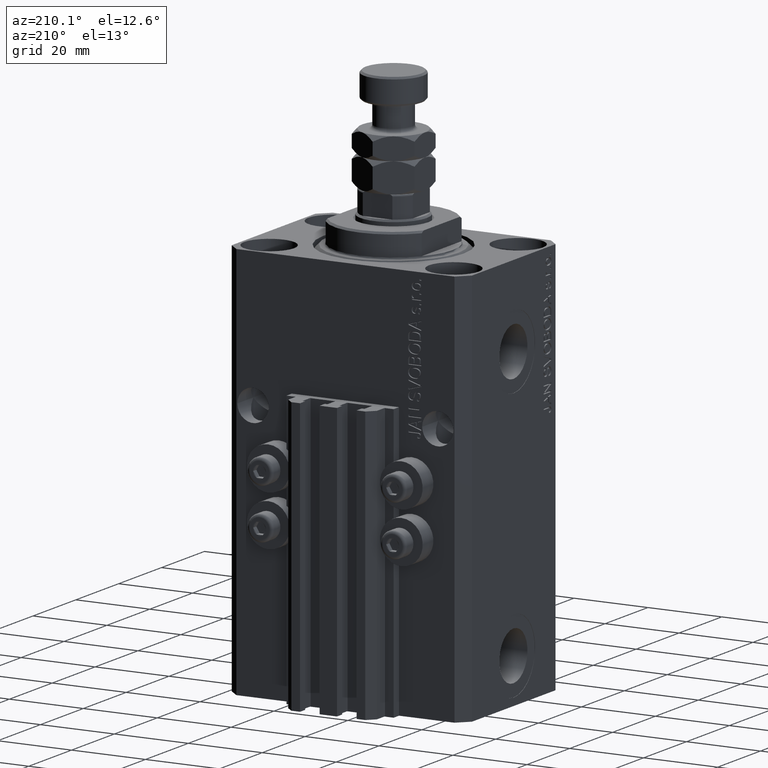
[diagram: clean part render]
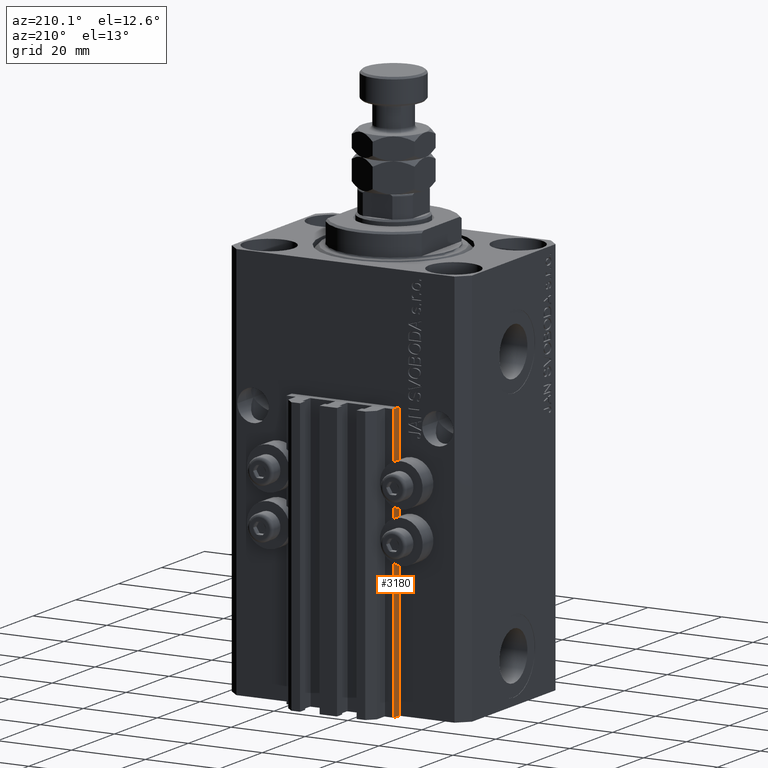
[diagram: same view with one face highlighted and labeled with its STEP entity id]
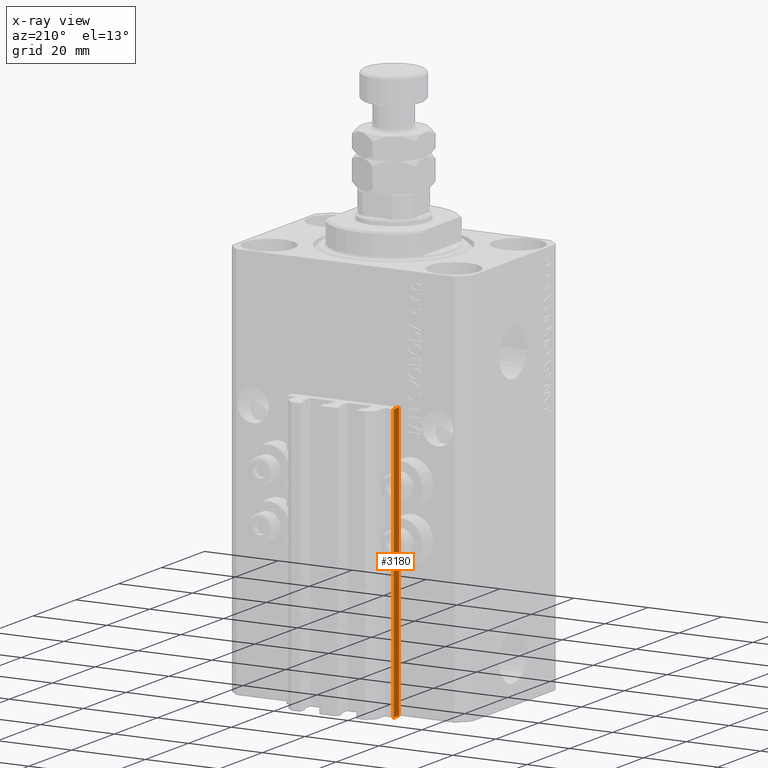
[diagram: x-ray of the same camera — body ghosted, the highlighted face saturated]
A machine part, auxiliary view. The second image highlights one B-rep face of the part: STEP entity #3180.
The next image is the same camera in x-ray: the body ghosted, the highlighted face saturated — about 0% of this face is hidden behind the body in this view.
In plain terms, the highlighted planar face has unit normal (-1, 0, 0).
Its self-contained STEP definition (entity closure, byte-faithful):
#826 = LINE ( 'NONE', #46013, #18399 ) ;
#1113 = CARTESIAN_POINT ( 'NONE',  ( -14.50000000000000000, 22.49999999999949907, -33.00000000000000000 ) ) ;
#2556 = DIRECTION ( 'NONE',  ( -1.000000000000000000, 0.000000000000000000, 0.000000000000000000 ) ) ;
#2620 = ORIENTED_EDGE ( 'NONE', *, *, #34633, .F. ) ;
#3010 = VECTOR ( 'NONE', #35124, 1000.000000000000000 ) ;
#3180 = ADVANCED_FACE ( 'NONE', ( #29027 ), #29762, .T. ) ;
#3860 = EDGE_CURVE ( 'NONE', #25141, #25302, #32399, .T. ) ;
#9995 = VECTOR ( 'NONE', #44121, 1000.000000000000000 ) ;
#11694 = CARTESIAN_POINT ( 'NONE',  ( -14.50000000000000000, 24.99999999999949196, -107.0000000000000000 ) ) ;
#12194 = LINE ( 'NONE', #11694, #3010 ) ;
#15402 = EDGE_CURVE ( 'NONE', #19762, #25141, #32528, .T. ) ;
#16345 = AXIS2_PLACEMENT_3D ( 'NONE', #44983, #2556, #20630 ) ;
#18377 = CARTESIAN_POINT ( 'NONE',  ( -14.50000000000000000, 24.99999999999949196, -107.0000000000000000 ) ) ;
#18399 = VECTOR ( 'NONE', #30546, 1000.000000000000000 ) ;
#19762 = VERTEX_POINT ( 'NONE', #18377 ) ;
#20630 = DIRECTION ( 'NONE',  ( 0.000000000000000000, 0.000000000000000000, 1.000000000000000000 ) ) ;
#22116 = ORIENTED_EDGE ( 'NONE', *, *, #23041, .F. ) ;
#23041 = EDGE_CURVE ( 'NONE', #35952, #25302, #826, .T. ) ;
#25141 = VERTEX_POINT ( 'NONE', #31061 ) ;
#25302 = VERTEX_POINT ( 'NONE', #1113 ) ;
#29027 = FACE_OUTER_BOUND ( 'NONE', #46836, .T. ) ;
#29762 = PLANE ( 'NONE',  #16345 ) ;
#30546 = DIRECTION ( 'NONE',  ( 0.000000000000000000, -1.000000000000000000, 0.000000000000000000 ) ) ;
#31061 = CARTESIAN_POINT ( 'NONE',  ( -14.50000000000000000, 22.49999999999949907, -107.0000000000000000 ) ) ;
#32399 = LINE ( 'NONE', #40143, #9995 ) ;
#32528 = LINE ( 'NONE', #43759, #47615 ) ;
#34375 = CARTESIAN_POINT ( 'NONE',  ( -14.50000000000000000, 24.99999999999949196, -33.00000000000000000 ) ) ;
#34633 = EDGE_CURVE ( 'NONE', #19762, #35952, #12194, .T. ) ;
#35124 = DIRECTION ( 'NONE',  ( 0.000000000000000000, 0.000000000000000000, 1.000000000000000000 ) ) ;
#35952 = VERTEX_POINT ( 'NONE', #34375 ) ;
#40125 = ORIENTED_EDGE ( 'NONE', *, *, #3860, .T. ) ;
#40143 = CARTESIAN_POINT ( 'NONE',  ( -14.50000000000000000, 22.49999999999949907, -107.0000000000000000 ) ) ;
#43759 = CARTESIAN_POINT ( 'NONE',  ( -14.50000000000000000, 24.99999999999949196, -107.0000000000000000 ) ) ;
#44121 = DIRECTION ( 'NONE',  ( 0.000000000000000000, 0.000000000000000000, 1.000000000000000000 ) ) ;
#44983 = CARTESIAN_POINT ( 'NONE',  ( -14.50000000000000000, 24.99999999999949196, -107.0000000000000000 ) ) ;
#46013 = CARTESIAN_POINT ( 'NONE',  ( -14.50000000000000000, 24.99999999999949196, -33.00000000000000000 ) ) ;
#46730 = ORIENTED_EDGE ( 'NONE', *, *, #15402, .T. ) ;
#46836 = EDGE_LOOP ( 'NONE', ( #22116, #2620, #46730, #40125 ) ) ;
#47615 = VECTOR ( 'NONE', #47981, 1000.000000000000000 ) ;
#47981 = DIRECTION ( 'NONE',  ( 0.000000000000000000, -1.000000000000000000, 0.000000000000000000 ) ) ;